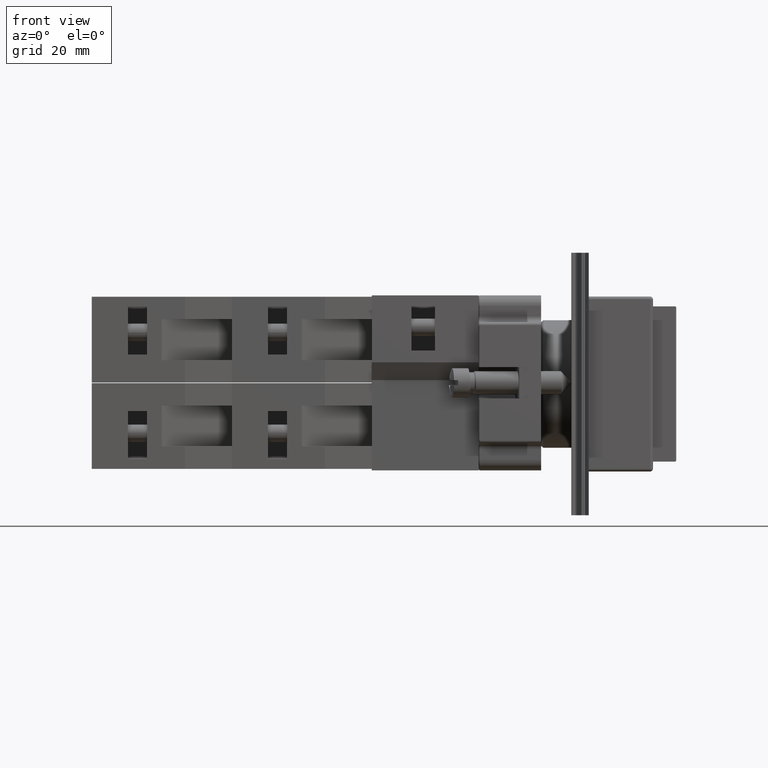
[diagram: clean part render]
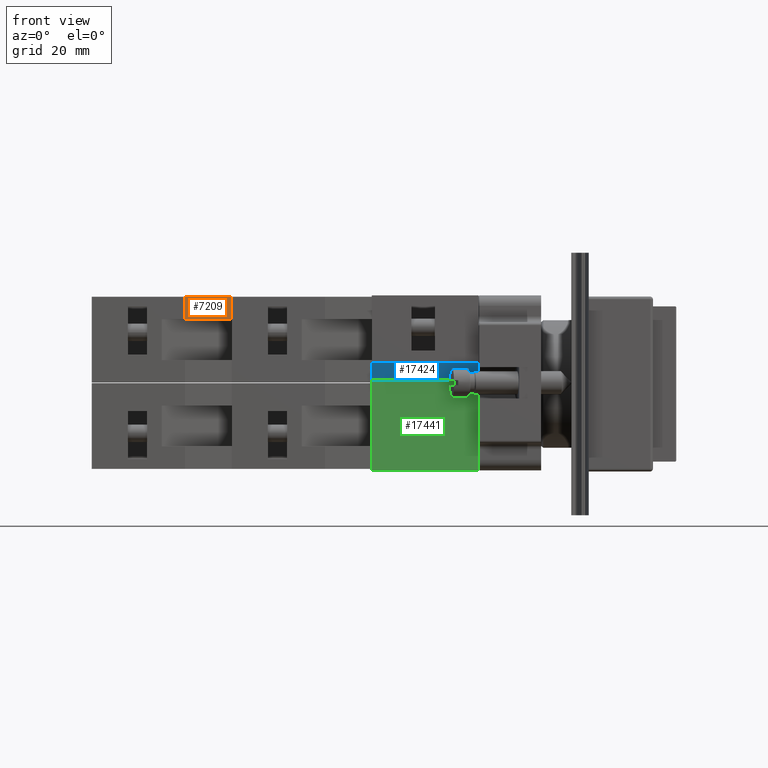
[diagram: same view with three faces highlighted in distinct colors, each labeled with its STEP entity id]
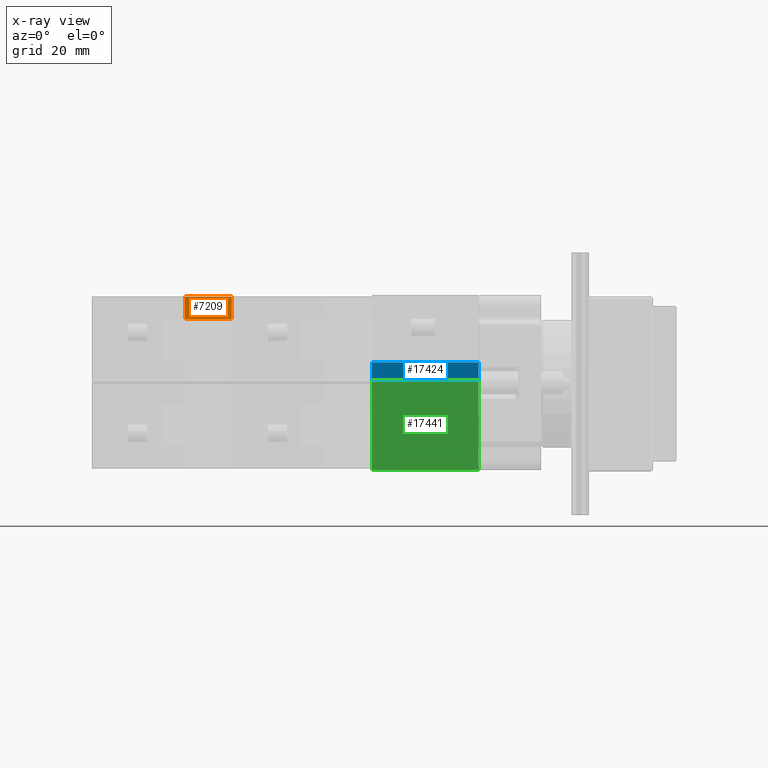
[diagram: x-ray of the same camera — body ghosted, the three highlighted faces saturated]
A machine part, front view with three faces highlighted in distinct colors.
The next image is the same camera in x-ray (body ghosted, the three faces saturated) — at least one of them is partly hidden behind the body in this view.
Their STEP definitions:

[orange] entity #7209 — the highlighted planar face has unit normal (0.1843, -0.9829, -0).
#7006=CARTESIAN_POINT('',(-44.936741828918457,7.797073323279618,10.850000000000000));
#7007=VERTEX_POINT('',#7006);
#7008=CARTESIAN_POINT('',(-43.436741828918457,-0.202926676720380,10.850000000000000));
#7009=VERTEX_POINT('',#7008);
#7010=CARTESIAN_POINT('',(-44.936741828918457,7.797073323279618,10.850000000000000));
#7011=DIRECTION('',(0.184288535050185,-0.982872186934322,0.0));
#7012=VECTOR('',#7011,8.139410298049853);
#7013=LINE('',#7010,#7012);
#7014=EDGE_CURVE('',#7007,#7009,#7013,.T.);
#7111=CARTESIAN_POINT('',(-44.936741828918457,7.797073323279626,14.699999999999999));
#7112=VERTEX_POINT('',#7111);
#7113=CARTESIAN_POINT('',(-44.936741828918457,7.797073323279618,10.850000000000000));
#7114=DIRECTION('',(0.0,0.0,1.0));
#7115=VECTOR('',#7114,3.850000000000000);
#7116=LINE('',#7113,#7115);
#7117=EDGE_CURVE('',#7007,#7112,#7116,.T.);
#7186=CARTESIAN_POINT('',(-43.436741828918457,-0.202926676720380,0.0));
#7187=DIRECTION('',(-0.982872186934322,-0.184288535050186,0.0));
#7188=DIRECTION('',(0.0,0.0,1.0));
#7189=AXIS2_PLACEMENT_3D('',#7186,#7187,#7188);
#7190=PLANE('',#7189);
#7191=ORIENTED_EDGE('',*,*,#7014,.T.);
#7192=CARTESIAN_POINT('',(-43.436741828918457,-0.202926676720380,14.699999999999999));
#7193=VERTEX_POINT('',#7192);
#7194=CARTESIAN_POINT('',(-43.436741828918457,-0.202926676720380,10.850000000000000));
#7195=DIRECTION('',(0.0,0.0,1.0));
#7196=VECTOR('',#7195,3.850000000000000);
#7197=LINE('',#7194,#7196);
#7198=EDGE_CURVE('',#7009,#7193,#7197,.T.);
#7199=ORIENTED_EDGE('',*,*,#7198,.T.);
#7200=CARTESIAN_POINT('',(-43.436741828918457,-0.202926676720380,14.699999999999999));
#7201=DIRECTION('',(-0.184288535050185,0.982872186934322,0.0));
#7202=VECTOR('',#7201,8.139410298049860);
#7203=LINE('',#7200,#7202);
#7204=EDGE_CURVE('',#7193,#7112,#7203,.T.);
#7205=ORIENTED_EDGE('',*,*,#7204,.T.);
#7206=ORIENTED_EDGE('',*,*,#7117,.F.);
#7207=EDGE_LOOP('',(#7191,#7199,#7205,#7206));
#7208=FACE_OUTER_BOUND('',#7207,.T.);
#7209=ADVANCED_FACE('',(#7208),#7190,.T.);

[blue] entity #17424 — the highlighted planar face has unit normal (0, -0.8598, -0.5106).
#17103=CARTESIAN_POINT('',(10.782876421730872,-2.895187781769740,18.300000000000001));
#17104=VERTEX_POINT('',#17103);
#17111=CARTESIAN_POINT('',(12.582876421730873,0.135901131475797,18.300000000000001));
#17112=VERTEX_POINT('',#17111);
#17113=CARTESIAN_POINT('',(12.582876421730873,0.135901131475797,18.300000000000001));
#17114=DIRECTION('',(-0.510599775123398,-0.859818509712332,0.0));
#17115=VECTOR('',#17114,3.525265947414466);
#17116=LINE('',#17113,#17115);
#17117=EDGE_CURVE('',#17112,#17104,#17116,.T.);
#17377=CARTESIAN_POINT('',(12.582876421730873,0.135901131475797,0.0));
#17378=VERTEX_POINT('',#17377);
#17379=CARTESIAN_POINT('',(12.582876421730873,0.135901131475797,0.0));
#17380=DIRECTION('',(0.0,0.0,1.0));
#17381=VECTOR('',#17380,18.300000000000001);
#17382=LINE('',#17379,#17381);
#17383=EDGE_CURVE('',#17378,#17112,#17382,.T.);
#17401=CARTESIAN_POINT('',(12.582876421730873,0.135901131475797,0.0));
#17402=DIRECTION('',(0.859818509712332,-0.510599775123399,0.0));
#17403=DIRECTION('',(0.0,0.0,-1.0));
#17404=AXIS2_PLACEMENT_3D('',#17401,#17402,#17403);
#17405=PLANE('',#17404);
#17406=ORIENTED_EDGE('',*,*,#17117,.T.);
#17407=CARTESIAN_POINT('',(10.782876421730872,-2.895187781769740,0.0));
#17408=VERTEX_POINT('',#17407);
#17409=CARTESIAN_POINT('',(10.782876421730872,-2.895187781769740,0.0));
#17410=DIRECTION('',(0.0,0.0,1.0));
#17411=VECTOR('',#17410,18.300000000000001);
#17412=LINE('',#17409,#17411);
#17413=EDGE_CURVE('',#17408,#17104,#17412,.T.);
#17414=ORIENTED_EDGE('',*,*,#17413,.F.);
#17415=CARTESIAN_POINT('',(10.782876421730872,-2.895187781769740,0.0));
#17416=DIRECTION('',(0.510599775123398,0.859818509712332,0.0));
#17417=VECTOR('',#17416,3.525265947414466);
#17418=LINE('',#17415,#17417);
#17419=EDGE_CURVE('',#17408,#17378,#17418,.T.);
#17420=ORIENTED_EDGE('',*,*,#17419,.T.);
#17421=ORIENTED_EDGE('',*,*,#17383,.T.);
#17422=EDGE_LOOP('',(#17406,#17414,#17420,#17421));
#17423=FACE_OUTER_BOUND('',#17422,.T.);
#17424=ADVANCED_FACE('',(#17423),#17405,.T.);

[green] entity #17441 — the highlighted planar face has unit normal (0, -1, -0).
#17095=CARTESIAN_POINT('',(10.782876421730874,-18.364098868524202,18.300000000000001));
#17096=VERTEX_POINT('',#17095);
#17103=CARTESIAN_POINT('',(10.782876421730872,-2.895187781769740,18.300000000000001));
#17104=VERTEX_POINT('',#17103);
#17105=CARTESIAN_POINT('',(10.782876421730872,-2.895187781769740,18.300000000000001));
#17106=DIRECTION('',(0.0,-1.0,0.0));
#17107=VECTOR('',#17106,15.468911086754463);
#17108=LINE('',#17105,#17107);
#17109=EDGE_CURVE('',#17104,#17096,#17108,.T.);
#17247=CARTESIAN_POINT('',(10.782876421730874,-18.364098868524202,0.0));
#17248=VERTEX_POINT('',#17247);
#17255=CARTESIAN_POINT('',(10.782876421730874,-18.364098868524202,0.0));
#17256=DIRECTION('',(0.0,0.0,1.0));
#17257=VECTOR('',#17256,18.300000000000001);
#17258=LINE('',#17255,#17257);
#17259=EDGE_CURVE('',#17248,#17096,#17258,.T.);
#17407=CARTESIAN_POINT('',(10.782876421730872,-2.895187781769740,0.0));
#17408=VERTEX_POINT('',#17407);
#17409=CARTESIAN_POINT('',(10.782876421730872,-2.895187781769740,0.0));
#17410=DIRECTION('',(0.0,0.0,1.0));
#17411=VECTOR('',#17410,18.300000000000001);
#17412=LINE('',#17409,#17411);
#17413=EDGE_CURVE('',#17408,#17104,#17412,.T.);
#17425=CARTESIAN_POINT('',(10.782876421730872,-2.895187781769740,0.0));
#17426=DIRECTION('',(1.0,0.0,0.0));
#17427=DIRECTION('',(0.0,0.0,-1.0));
#17428=AXIS2_PLACEMENT_3D('',#17425,#17426,#17427);
#17429=PLANE('',#17428);
#17430=ORIENTED_EDGE('',*,*,#17109,.T.);
#17431=ORIENTED_EDGE('',*,*,#17259,.F.);
#17432=CARTESIAN_POINT('',(10.782876421730874,-18.364098868524202,0.0));
#17433=DIRECTION('',(0.0,1.0,0.0));
#17434=VECTOR('',#17433,15.468911086754463);
#17435=LINE('',#17432,#17434);
#17436=EDGE_CURVE('',#17248,#17408,#17435,.T.);
#17437=ORIENTED_EDGE('',*,*,#17436,.T.);
#17438=ORIENTED_EDGE('',*,*,#17413,.T.);
#17439=EDGE_LOOP('',(#17430,#17431,#17437,#17438));
#17440=FACE_OUTER_BOUND('',#17439,.T.);
#17441=ADVANCED_FACE('',(#17440),#17429,.T.);